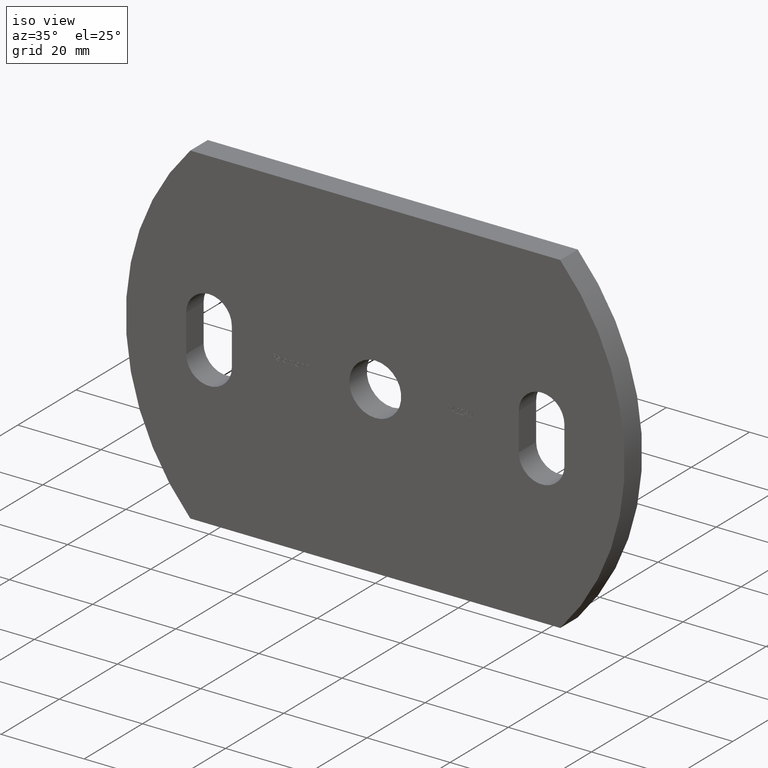
[diagram: clean part render]
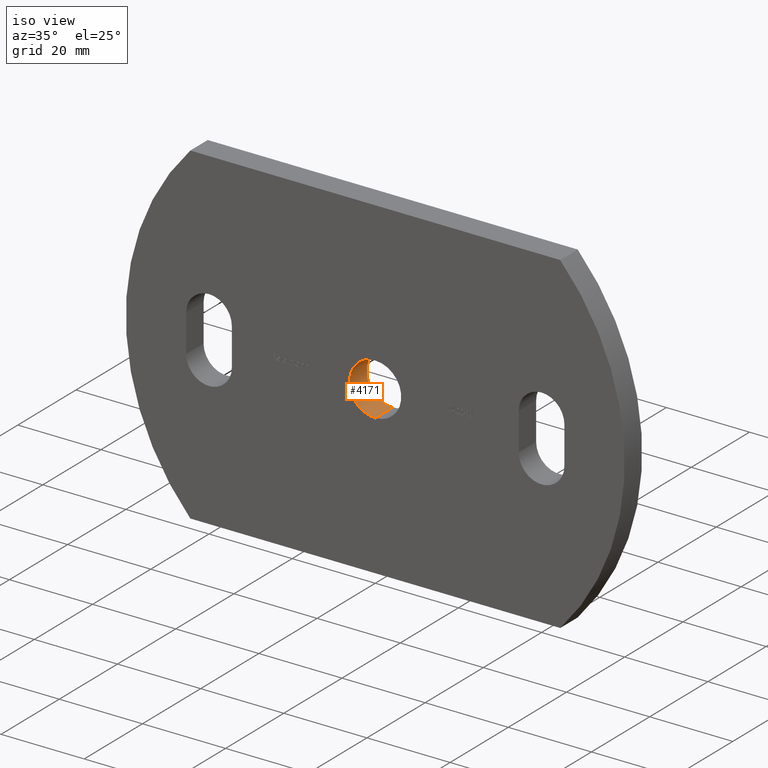
[diagram: same view with one face highlighted and labeled with its STEP entity id]
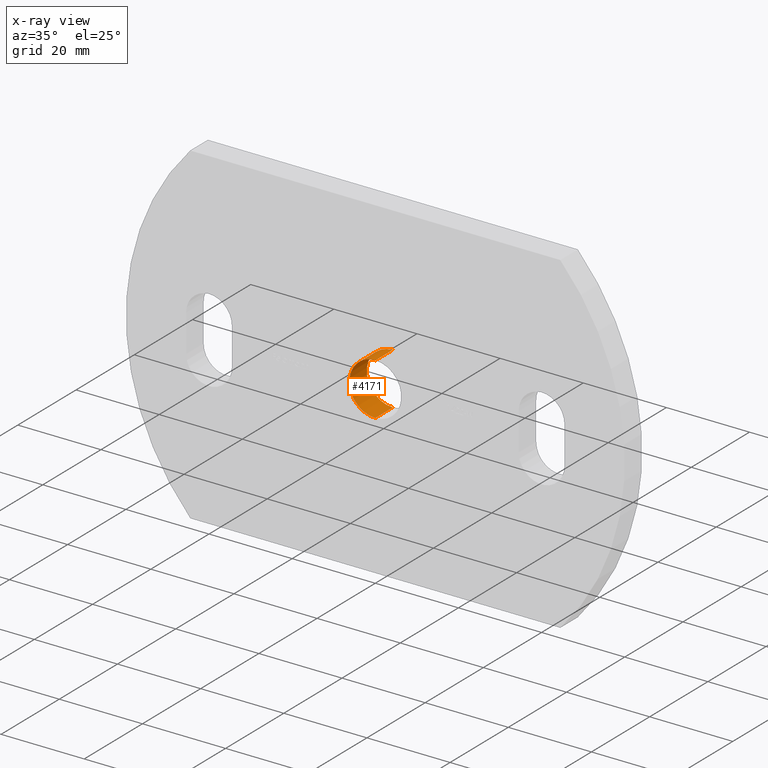
[diagram: x-ray of the same camera — body ghosted, the highlighted face saturated]
A machine part, iso view. The second image highlights one B-rep face of the part: STEP entity #4171.
The next image is the same camera in x-ray: the body ghosted, the highlighted face saturated — about 0% of this face is hidden behind the body in this view.
In plain terms, the highlighted cylindrical surface (edge-blend (fillet) strip) has radius 6.25 mm, axis along (-0, 1, -0).
Its self-contained STEP definition (entity closure, byte-faithful):
#312 = EDGE_CURVE ( 'NONE', #3895, #2527, #4643, .T. ) ;
#420 = CARTESIAN_POINT ( 'NONE',  ( 0.0000000000000000000, 0.0000000000000000000, 0.0000000000000000000 ) ) ;
#1070 = DIRECTION ( 'NONE',  ( 0.0000000000000000000, 1.000000000000000000, 0.0000000000000000000 ) ) ;
#1159 = VECTOR ( 'NONE', #6428, 1000.000000000000000 ) ;
#1425 = CARTESIAN_POINT ( 'NONE',  ( 0.0000000000000000000, 6.000000000000000000, 6.250000000000000000 ) ) ;
#1620 = EDGE_CURVE ( 'NONE', #3895, #7686, #2248, .T. ) ;
#1789 = DIRECTION ( 'NONE',  ( 0.0000000000000000000, 0.0000000000000000000, 1.000000000000000000 ) ) ;
#2012 = DIRECTION ( 'NONE',  ( 0.0000000000000000000, 1.000000000000000000, 0.0000000000000000000 ) ) ;
#2125 = CARTESIAN_POINT ( 'NONE',  ( 7.654042494670957600E-016, 0.0000000000000000000, -6.250000000000000000 ) ) ;
#2248 = LINE ( 'NONE', #2125, #3383 ) ;
#2315 = CARTESIAN_POINT ( 'NONE',  ( 0.0000000000000000000, 0.0000000000000000000, 6.250000000000000000 ) ) ;
#2500 = DIRECTION ( 'NONE',  ( 0.0000000000000000000, 0.0000000000000000000, 1.000000000000000000 ) ) ;
#2527 = VERTEX_POINT ( 'NONE', #2315 ) ;
#2608 = FACE_OUTER_BOUND ( 'NONE', #5743, .T. ) ;
#2728 = EDGE_CURVE ( 'NONE', #2527, #3061, #3970, .T. ) ;
#2764 = DIRECTION ( 'NONE',  ( 0.0000000000000000000, 0.0000000000000000000, 1.000000000000000000 ) ) ;
#3061 = VERTEX_POINT ( 'NONE', #1425 ) ;
#3267 = CARTESIAN_POINT ( 'NONE',  ( 0.0000000000000000000, 0.0000000000000000000, 0.0000000000000000000 ) ) ;
#3383 = VECTOR ( 'NONE', #4191, 1000.000000000000000 ) ;
#3894 = AXIS2_PLACEMENT_3D ( 'NONE', #3267, #6089, #2500 ) ;
#3895 = VERTEX_POINT ( 'NONE', #4485 ) ;
#3959 = AXIS2_PLACEMENT_3D ( 'NONE', #6243, #2012, #2764 ) ;
#3970 = LINE ( 'NONE', #7249, #1159 ) ;
#4171 = ADVANCED_FACE ( 'NONE', ( #2608 ), #8608, .F. ) ;
#4191 = DIRECTION ( 'NONE',  ( -0.0000000000000000000, 1.000000000000000000, -0.0000000000000000000 ) ) ;
#4485 = CARTESIAN_POINT ( 'NONE',  ( 7.654042494670957600E-016, 0.0000000000000000000, -6.250000000000000000 ) ) ;
#4643 = CIRCLE ( 'NONE', #6846, 6.250000000000000000 ) ;
#5245 = CIRCLE ( 'NONE', #3959, 6.250000000000000000 ) ;
#5743 = EDGE_LOOP ( 'NONE', ( #6876, #5764, #7638, #6896 ) ) ;
#5764 = ORIENTED_EDGE ( 'NONE', *, *, #1620, .T. ) ;
#6089 = DIRECTION ( 'NONE',  ( -0.0000000000000000000, 1.000000000000000000, -0.0000000000000000000 ) ) ;
#6243 = CARTESIAN_POINT ( 'NONE',  ( 0.0000000000000000000, 6.000000000000000000, 0.0000000000000000000 ) ) ;
#6428 = DIRECTION ( 'NONE',  ( -0.0000000000000000000, 1.000000000000000000, -0.0000000000000000000 ) ) ;
#6846 = AXIS2_PLACEMENT_3D ( 'NONE', #420, #1070, #1789 ) ;
#6876 = ORIENTED_EDGE ( 'NONE', *, *, #312, .F. ) ;
#6896 = ORIENTED_EDGE ( 'NONE', *, *, #2728, .F. ) ;
#6996 = EDGE_CURVE ( 'NONE', #7686, #3061, #5245, .T. ) ;
#7249 = CARTESIAN_POINT ( 'NONE',  ( 0.0000000000000000000, 0.0000000000000000000, 6.250000000000000000 ) ) ;
#7638 = ORIENTED_EDGE ( 'NONE', *, *, #6996, .T. ) ;
#7686 = VERTEX_POINT ( 'NONE', #8868 ) ;
#8608 = CYLINDRICAL_SURFACE ( 'NONE', #3894, 6.250000000000000000 ) ;
#8868 = CARTESIAN_POINT ( 'NONE',  ( 7.654042494670957600E-016, 6.000000000000000000, -6.250000000000000000 ) ) ;